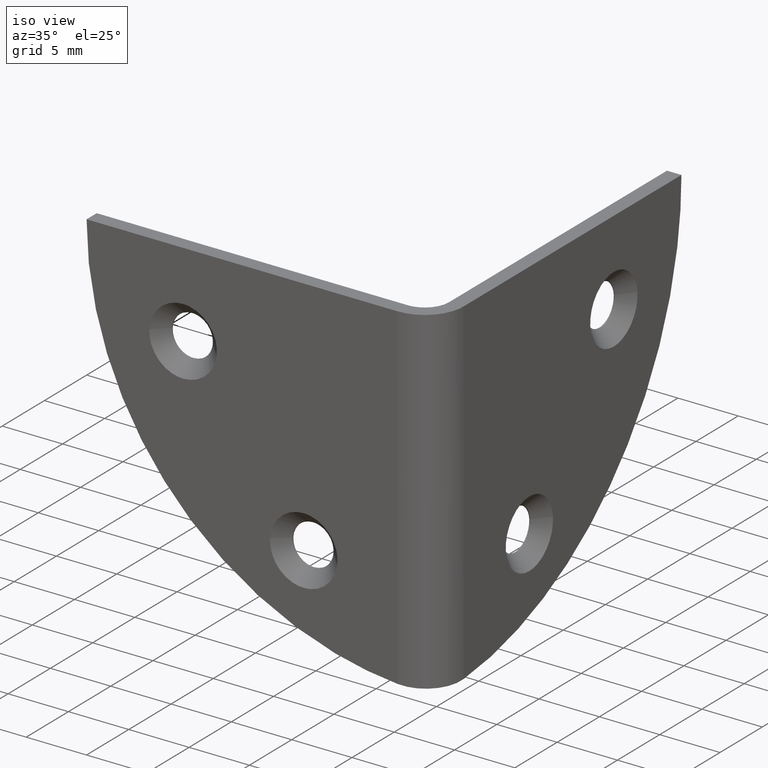
[diagram: clean part render]
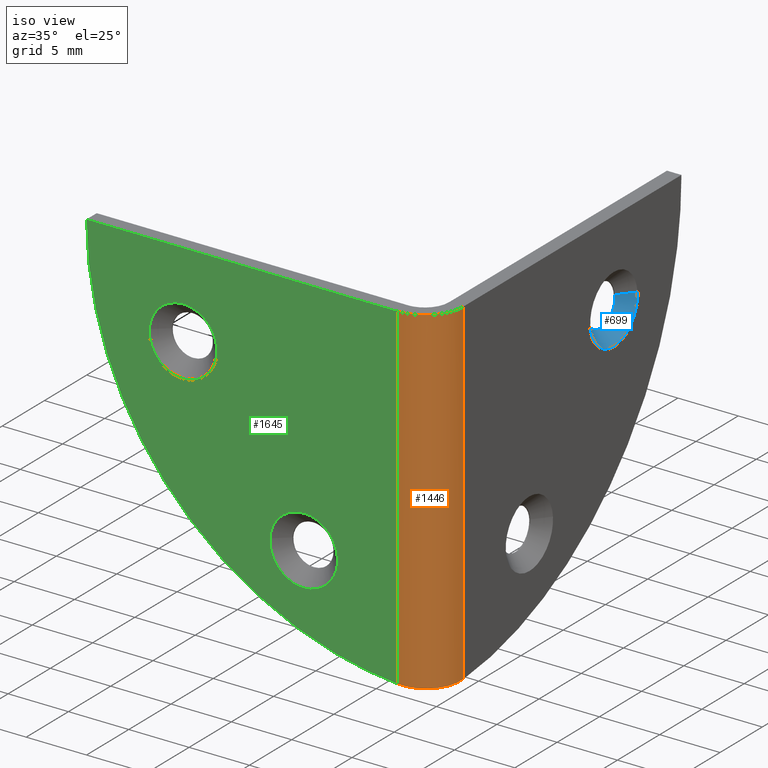
[diagram: same view with three faces highlighted in distinct colors, each labeled with its STEP entity id]
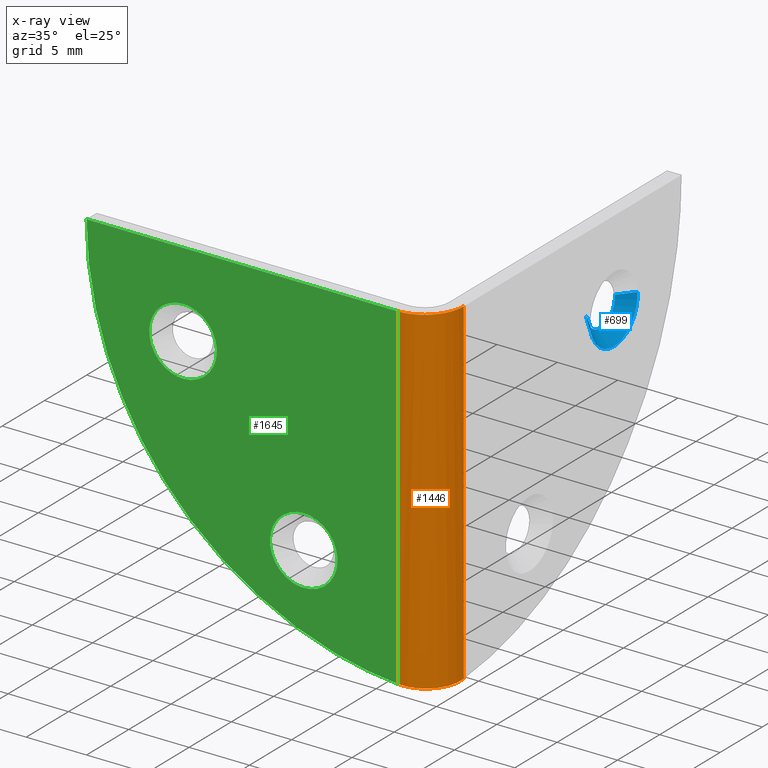
[diagram: x-ray of the same camera — body ghosted, the three highlighted faces saturated]
A machine part, iso view with three faces highlighted in distinct colors.
The next image is the same camera in x-ray (body ghosted, the three faces saturated) — at least one of them is partly hidden behind the body in this view.
Their STEP definitions:

[orange] entity #1446 — the highlighted face is a freeform B-spline surface patch.
#1356=CARTESIAN_POINT('',(-3.283766234585195,0.001096560078218,28.699999999999999));
#1357=CARTESIAN_POINT('',(-3.283766234585195,0.001096560078218,-0.717500000000001));
#1358=CARTESIAN_POINT('',(0.239951695207081,-0.091175241263261,28.700000000000003));
#1359=CARTESIAN_POINT('',(0.239951695207081,-0.091175241263261,-0.717500000000001));
#1360=CARTESIAN_POINT('',(-0.007921687175170,3.425024542646743,28.700000000000006));
#1361=CARTESIAN_POINT('',(-0.007921687175170,3.425024542646743,-0.717500000000001));
#1369=(BOUNDED_SURFACE()B_SPLINE_SURFACE(1,2,((#1356,#1358,#1360),(#1357,#1359,#1361)),.UNSPECIFIED.,.F.,.F.,.U.)B_SPLINE_SURFACE_WITH_KNOTS((2,2),(3,3),(0.0,29.417500000000011),(0.0,5.667655861689293),.UNSPECIFIED.)GEOMETRIC_REPRESENTATION_ITEM()RATIONAL_B_SPLINE_SURFACE(((1.0,0.670944202263631,0.996392689933335),(1.0,0.670944202263631,0.996392689933335)))REPRESENTATION_ITEM('')SURFACE());
#1370=CARTESIAN_POINT('',(-3.200000000000000,0.0,28.0));
#1371=VERTEX_POINT('',#1370);
#1372=CARTESIAN_POINT('',(0.0,3.200000000000000,28.0));
#1373=VERTEX_POINT('',#1372);
#1374=CARTESIAN_POINT('',(-3.200000000000000,0.0,28.0));
#1375=CARTESIAN_POINT('',(-4.336809E-016,4.336809E-016,27.999999999999996));
#1376=CARTESIAN_POINT('',(0.0,3.200000000000000,28.0));
#1384=(BOUNDED_CURVE()B_SPLINE_CURVE(2,(#1374,#1375,#1376),.UNSPECIFIED.,.F.,.U.)CURVE()GEOMETRIC_REPRESENTATION_ITEM()QUASI_UNIFORM_CURVE()RATIONAL_B_SPLINE_CURVE((1.0,0.707106781186548,1.0))REPRESENTATION_ITEM(''));
#1385=EDGE_CURVE('',#1371,#1373,#1384,.T.);
#1386=ORIENTED_EDGE('',*,*,#1385,.F.);
#1387=CARTESIAN_POINT('',(-3.200000000000000,0.0,0.085848375801875));
#1388=VERTEX_POINT('',#1387);
#1389=CARTESIAN_POINT('',(-3.200000000000000,0.0,0.085848375801875));
#1390=CARTESIAN_POINT('',(-3.200000000000000,0.0,28.0));
#1391=QUASI_UNIFORM_CURVE('',1,(#1389,#1390),.UNSPECIFIED.,.F.,.U.);
#1392=EDGE_CURVE('',#1388,#1371,#1391,.T.);
#1393=ORIENTED_EDGE('',*,*,#1392,.F.);
#1394=CARTESIAN_POINT('',(-1.200000000000102,0.702000800640534,0.0));
#1395=VERTEX_POINT('',#1394);
#1396=CARTESIAN_POINT('',(-1.200000000000102,0.702000800640534,0.0));
#1397=CARTESIAN_POINT('',(-1.342045252530052,0.588273580418559,0.001014634819831));
#1398=CARTESIAN_POINT('',(-1.491662187906935,0.488220473917032,0.003163294245683));
#1399=CARTESIAN_POINT('',(-1.805382165407114,0.314309896446755,0.010431471271711));
#1400=CARTESIAN_POINT('',(-1.969603739531771,0.240411131437398,0.015552492130751));
#1401=CARTESIAN_POINT('',(-2.312669322753918,0.120115992782865,0.029545713392779));
#1402=CARTESIAN_POINT('',(-2.486739910458012,0.075370754892745,0.038226276756738));
#1403=CARTESIAN_POINT('',(-2.839705185095241,0.015312335398379,0.059229786025431));
#1404=CARTESIAN_POINT('',(-3.018600100804319,-1.969436E-014,0.071551327061288));
#1405=CARTESIAN_POINT('',(-3.200000000000000,0.0,0.085848375801875));
#1406=B_SPLINE_CURVE_WITH_KNOTS('',3,(#1396,#1397,#1398,#1399,#1400,#1401,#1402,#1403,#1404,#1405),.UNSPECIFIED.,.F.,.U.,(4,2,2,2,4),(0.0,0.250000000000000,0.500000000000000,0.750000000000000,1.0),.UNSPECIFIED.);
#1407=EDGE_CURVE('',#1395,#1388,#1406,.T.);
#1408=ORIENTED_EDGE('',*,*,#1407,.F.);
#1409=CARTESIAN_POINT('',(-0.702000800640706,1.199999999999900,0.0));
#1410=VERTEX_POINT('',#1409);
#1411=CARTESIAN_POINT('',(-0.702000800640706,1.199999999999900,0.0));
#1412=CARTESIAN_POINT('',(-0.923432231500166,0.923432231499975,0.0));
#1413=CARTESIAN_POINT('',(-1.200000000000102,0.702000800640534,0.0));
#1421=(BOUNDED_CURVE()B_SPLINE_CURVE(2,(#1411,#1412,#1413),.UNSPECIFIED.,.F.,.U.)CURVE()GEOMETRIC_REPRESENTATION_ITEM()QUASI_UNIFORM_CURVE()RATIONAL_B_SPLINE_CURVE((1.0,0.993926792387082,1.0))REPRESENTATION_ITEM(''));
#1422=EDGE_CURVE('',#1410,#1395,#1421,.T.);
#1423=ORIENTED_EDGE('',*,*,#1422,.F.);
#1424=CARTESIAN_POINT('',(0.0,3.200000000000000,0.085848375801875));
#1425=VERTEX_POINT('',#1424);
#1426=CARTESIAN_POINT('',(0.0,3.200000000000000,0.085848375801875));
#1427=CARTESIAN_POINT('',(-5.717472E-018,3.018599928091124,0.071551313448883));
#1428=CARTESIAN_POINT('',(-0.015312491975730,2.839674300942001,0.059227387008694));
#1429=CARTESIAN_POINT('',(-0.075400740080093,2.486593665520522,0.038218135832681));
#1430=CARTESIAN_POINT('',(-0.120214509209015,2.312326690938535,0.029529655798103));
#1431=CARTESIAN_POINT('',(-0.240550649565277,1.969267650901181,0.015540869680355));
#1432=CARTESIAN_POINT('',(-0.314377955720203,1.805248992934722,0.010427944851313));
#1433=CARTESIAN_POINT('',(-0.488239699481862,1.491637911133328,0.003163173147343));
#1434=CARTESIAN_POINT('',(-0.588273672126710,1.342045136885849,0.001014928781867));
#1435=CARTESIAN_POINT('',(-0.702000800640706,1.199999999999900,0.0));
#1436=B_SPLINE_CURVE_WITH_KNOTS('',3,(#1426,#1427,#1428,#1429,#1430,#1431,#1432,#1433,#1434,#1435),.UNSPECIFIED.,.F.,.U.,(4,2,2,2,4),(0.0,0.250000000000000,0.500000000000000,0.750000000000000,1.0),.UNSPECIFIED.);
#1437=EDGE_CURVE('',#1425,#1410,#1436,.T.);
#1438=ORIENTED_EDGE('',*,*,#1437,.F.);
#1439=CARTESIAN_POINT('',(0.0,3.200000000000000,28.0));
#1440=CARTESIAN_POINT('',(0.0,3.200000000000000,0.085848375801875));
#1441=QUASI_UNIFORM_CURVE('',1,(#1439,#1440),.UNSPECIFIED.,.F.,.U.);
#1442=EDGE_CURVE('',#1373,#1425,#1441,.T.);
#1443=ORIENTED_EDGE('',*,*,#1442,.F.);
#1444=EDGE_LOOP('',(#1386,#1393,#1408,#1423,#1438,#1443));
#1445=FACE_OUTER_BOUND('',#1444,.T.);
#1446=ADVANCED_FACE('',(#1445),#1369,.T.);

[blue] entity #699 — the highlighted face is a freeform B-spline surface patch.
#390=CARTESIAN_POINT('',(-1.100000000000200,22.688897628839172,20.806028869927928));
#391=VERTEX_POINT('',#390);
#392=CARTESIAN_POINT('',(-1.100000000000200,21.0,19.300000000000001));
#393=VERTEX_POINT('',#392);
#394=CARTESIAN_POINT('',(-1.100000000000200,22.688897628839175,20.806028869927932));
#395=CARTESIAN_POINT('',(-1.100000000000200,22.515929109697829,19.300000000000008));
#396=CARTESIAN_POINT('',(-1.100000000000200,21.0,19.300000000000001));
#404=(BOUNDED_CURVE()B_SPLINE_CURVE(2,(#394,#395,#396),.UNSPECIFIED.,.F.,.U.)B_SPLINE_CURVE_WITH_KNOTS((3,3),(0.269767755879307,0.500000000000000),.UNSPECIFIED.)CURVE()GEOMETRIC_REPRESENTATION_ITEM()RATIONAL_B_SPLINE_CURVE((0.957343736455341,0.730266147779383,1.0))REPRESENTATION_ITEM(''));
#405=EDGE_CURVE('',#391,#393,#404,.T.);
#444=CARTESIAN_POINT('',(-1.100000000000176,19.303170833868968,20.896217626896320));
#445=VERTEX_POINT('',#444);
#451=CARTESIAN_POINT('',(-1.100000000000200,21.0,19.300000000000001));
#452=CARTESIAN_POINT('',(-1.100000000000200,19.400799550192211,19.299999999999997));
#453=CARTESIAN_POINT('',(-1.100000000000200,19.303170833868961,20.896217626896323));
#461=(BOUNDED_CURVE()B_SPLINE_CURVE(2,(#451,#452,#453),.UNSPECIFIED.,.F.,.U.)B_SPLINE_CURVE_WITH_KNOTS((3,3),(0.500000000000000,0.739332976895745),.UNSPECIFIED.)CURVE()GEOMETRIC_REPRESENTATION_ITEM()RATIONAL_B_SPLINE_CURVE((1.0,0.719603976115199,0.976072073079036))REPRESENTATION_ITEM(''));
#462=EDGE_CURVE('',#393,#445,#461,.T.);
#489=CARTESIAN_POINT('',(-1.099999999996063,22.694759467347989,21.133380462768880));
#490=VERTEX_POINT('',#489);
#491=CARTESIAN_POINT('',(-1.099999999996063,22.694759467347989,21.133380462768883));
#492=CARTESIAN_POINT('',(-1.100000000000200,22.700000000000003,21.066793181944405));
#493=CARTESIAN_POINT('',(-1.100000000000200,22.699999999999999,21.0));
#494=CARTESIAN_POINT('',(-1.100000000000200,22.700000000000003,20.902696700443414));
#495=CARTESIAN_POINT('',(-1.100000000000200,22.688897628839172,20.806028869927928));
#503=(BOUNDED_CURVE()B_SPLINE_CURVE(2,(#491,#492,#493,#494,#495),.UNSPECIFIED.,.F.,.U.)B_SPLINE_CURVE_WITH_KNOTS((3,2,3),(0.236331300626451,0.250000000000000,0.269767755879307),.UNSPECIFIED.)CURVE()GEOMETRIC_REPRESENTATION_ITEM()RATIONAL_B_SPLINE_CURVE((0.969723356158634,0.983986122573951,1.0,0.976840633407165,0.957343736455342))REPRESENTATION_ITEM(''));
#504=EDGE_CURVE('',#490,#391,#503,.T.);
#592=CARTESIAN_POINT('',(1.360270E-011,23.791368534458350,21.219685468142909));
#593=VERTEX_POINT('',#592);
#594=CARTESIAN_POINT('',(-1.099999999996063,22.694759467347989,21.133380462768880));
#595=CARTESIAN_POINT('',(1.360270E-011,23.791368534458350,21.219685468142909));
#596=QUASI_UNIFORM_CURVE('',1,(#594,#595),.UNSPECIFIED.,.F.,.U.);
#597=EDGE_CURVE('',#490,#593,#596,.T.);
#614=CARTESIAN_POINT('',(1.360161E-011,18.208631465541650,20.780314531857091));
#615=VERTEX_POINT('',#614);
#631=CARTESIAN_POINT('',(-1.100000000000176,19.303170833868968,20.896217626896320));
#632=CARTESIAN_POINT('',(1.360161E-011,18.208631465541650,20.780314531857091));
#633=QUASI_UNIFORM_CURVE('',1,(#631,#632),.UNSPECIFIED.,.F.,.U.);
#634=EDGE_CURVE('',#445,#615,#633,.T.);
#640=CARTESIAN_POINT('',(-1.127500000000206,19.328552051938647,20.920919708704265));
#641=CARTESIAN_POINT('',(-1.127500000000206,19.330590529530159,20.895018395076399));
#642=CARTESIAN_POINT('',(-1.127500000000205,19.463878596936169,19.201432921726528));
#643=CARTESIAN_POINT('',(-1.127500000000205,21.131222837604820,19.332655759331349));
#644=CARTESIAN_POINT('',(-1.127500000000205,22.798567078273475,19.463878596936169));
#645=CARTESIAN_POINT('',(-1.127500000000205,22.666413372527845,21.143050638784150));
#646=CARTESIAN_POINT('',(-1.127500000000206,22.665487958787040,21.154809135240637));
#647=CARTESIAN_POINT('',(0.028187500000002,18.173591513537744,20.866275700245748));
#648=CARTESIAN_POINT('',(0.028187500000002,18.177038566956785,20.822476733766880));
#649=CARTESIAN_POINT('',(0.028187500000002,18.402427892001253,17.958633824403631));
#650=CARTESIAN_POINT('',(0.028187500000002,21.221897033798811,18.180530858202442));
#651=CARTESIAN_POINT('',(0.028187500000002,24.041366175596373,18.402427892001253));
#652=CARTESIAN_POINT('',(0.028187500000002,23.817895049337192,21.241897774873763));
#653=CARTESIAN_POINT('',(0.028187500000002,23.816330180234601,21.261781322076772));
#661=(BOUNDED_SURFACE()B_SPLINE_SURFACE(2,1,((#640,#647),(#641,#648),(#642,#649),(#643,#650),(#644,#651),(#645,#652),(#646,#653)),.UNSPECIFIED.,.F.,.F.,.U.)B_SPLINE_SURFACE_WITH_KNOTS((3,1,2,1,3),(2,2),(0.0,0.104980082554222,4.790874560290799,9.476769038027376,9.523917141769413),(0.0,1.0),.UNSPECIFIED.)GEOMETRIC_REPRESENTATION_ITEM()RATIONAL_B_SPLINE_SURFACE(((1.013123622154402,1.013123622154402),(1.006561811077201,1.006561811077201),(0.707106781186548,0.707106781186548),(1.0,1.0),(0.707106781186548,0.707106781186548),(1.002947006154656,1.002947006154656),(1.005894012309311,1.005894012309311)))REPRESENTATION_ITEM('')SURFACE());
#662=ORIENTED_EDGE('',*,*,#504,.T.);
#663=ORIENTED_EDGE('',*,*,#405,.T.);
#664=ORIENTED_EDGE('',*,*,#462,.T.);
#665=ORIENTED_EDGE('',*,*,#634,.T.);
#666=CARTESIAN_POINT('',(-3.343175E-015,21.0,18.199999999999800));
#667=VERTEX_POINT('',#666);
#668=CARTESIAN_POINT('',(-3.343175E-015,21.0,18.199999999999800));
#669=CARTESIAN_POINT('',(-3.343175E-015,18.411706623550057,18.199999999999797));
#670=CARTESIAN_POINT('',(1.360161E-011,18.208631465541654,20.780314531857098));
#678=(BOUNDED_CURVE()B_SPLINE_CURVE(2,(#668,#669,#670),.UNSPECIFIED.,.F.,.U.)B_SPLINE_CURVE_WITH_KNOTS((3,3),(0.500000000000000,0.736331300620010),.UNSPECIFIED.)CURVE()GEOMETRIC_REPRESENTATION_ITEM()RATIONAL_B_SPLINE_CURVE((1.0,0.723120658620143,0.969723356145192))REPRESENTATION_ITEM(''));
#679=EDGE_CURVE('',#667,#615,#678,.T.);
#680=ORIENTED_EDGE('',*,*,#679,.F.);
#681=CARTESIAN_POINT('',(1.360270E-011,23.791368534458350,21.219685468142913));
#682=CARTESIAN_POINT('',(-3.343175E-015,23.800000000000196,21.110012299725827));
#683=CARTESIAN_POINT('',(-3.343175E-015,23.800000000000200,21.0));
#684=CARTESIAN_POINT('',(-3.343175E-015,23.800000000000196,18.199999999999797));
#685=CARTESIAN_POINT('',(-3.343175E-015,21.0,18.199999999999800));
#693=(BOUNDED_CURVE()B_SPLINE_CURVE(2,(#681,#682,#683,#684,#685),.UNSPECIFIED.,.F.,.U.)B_SPLINE_CURVE_WITH_KNOTS((3,2,3),(0.236331300620010,0.250000000000000,0.500000000000000),.UNSPECIFIED.)CURVE()GEOMETRIC_REPRESENTATION_ITEM()RATIONAL_B_SPLINE_CURVE((0.969723356145193,0.983986122566405,1.0,0.707106781186547,1.0))REPRESENTATION_ITEM(''));
#694=EDGE_CURVE('',#593,#667,#693,.T.);
#695=ORIENTED_EDGE('',*,*,#694,.F.);
#696=ORIENTED_EDGE('',*,*,#597,.F.);
#697=EDGE_LOOP('',(#662,#663,#664,#665,#680,#695,#696));
#698=FACE_OUTER_BOUND('',#697,.T.);
#699=ADVANCED_FACE('',(#698),#661,.F.);

[green] entity #1645 — the highlighted face is a freeform B-spline surface patch.
#924=CARTESIAN_POINT('',(-8.219573326180626,-1.699119E-011,7.669504142826440));
#925=VERTEX_POINT('',#924);
#931=CARTESIAN_POINT('',(-11.0,0.0,10.800000000000001));
#932=VERTEX_POINT('',#931);
#933=CARTESIAN_POINT('',(-8.219573326180626,-1.699119E-011,7.669504142826440));
#934=CARTESIAN_POINT('',(-8.200000000000001,0.0,7.834172464840621));
#935=CARTESIAN_POINT('',(-8.199999999999999,0.0,8.0));
#936=CARTESIAN_POINT('',(-8.199999999999999,0.0,10.800000000000001));
#937=CARTESIAN_POINT('',(-11.0,0.0,10.800000000000001));
#945=(BOUNDED_CURVE()B_SPLINE_CURVE(2,(#933,#934,#935,#936,#937),.UNSPECIFIED.,.F.,.U.)B_SPLINE_CURVE_WITH_KNOTS((3,2,3),(0.229562473499521,0.250000000000000,0.500000000000000),.UNSPECIFIED.)CURVE()GEOMETRIC_REPRESENTATION_ITEM()RATIONAL_B_SPLINE_CURVE((0.956026754156283,0.976055948314758,1.0,0.707106781186547,1.0))REPRESENTATION_ITEM(''));
#946=EDGE_CURVE('',#925,#932,#945,.T.);
#948=CARTESIAN_POINT('',(-13.794777435582141,-1.695383E-012,8.170935910710409));
#949=VERTEX_POINT('',#948);
#950=CARTESIAN_POINT('',(-11.0,0.0,10.800000000000001));
#951=CARTESIAN_POINT('',(-13.633976987311952,0.0,10.800000000000001));
#952=CARTESIAN_POINT('',(-13.794777435582148,-1.695383E-012,8.170935910710409));
#960=(BOUNDED_CURVE()B_SPLINE_CURVE(2,(#950,#951,#952),.UNSPECIFIED.,.F.,.U.)B_SPLINE_CURVE_WITH_KNOTS((3,3),(0.500000000000000,0.739332962240399),.UNSPECIFIED.)CURVE()GEOMETRIC_REPRESENTATION_ITEM()RATIONAL_B_SPLINE_CURVE((1.0,0.719603993285004,0.976072041669840))REPRESENTATION_ITEM(''));
#961=EDGE_CURVE('',#932,#949,#960,.T.);
#994=CARTESIAN_POINT('',(-11.0,0.0,5.200000000000000));
#995=VERTEX_POINT('',#994);
#996=CARTESIAN_POINT('',(-13.794777435582148,-1.695383E-012,8.170935910710409));
#997=CARTESIAN_POINT('',(-13.799999999999994,0.0,8.085547737248790));
#998=CARTESIAN_POINT('',(-13.800000000000001,0.0,8.0));
#999=CARTESIAN_POINT('',(-13.799999999999999,0.0,5.200000000000000));
#1000=CARTESIAN_POINT('',(-11.0,0.0,5.200000000000000));
#1008=(BOUNDED_CURVE()B_SPLINE_CURVE(2,(#996,#997,#998,#999,#1000),.UNSPECIFIED.,.F.,.U.)B_SPLINE_CURVE_WITH_KNOTS((3,2,3),(0.739332962240399,0.750000000000000,1.0),.UNSPECIFIED.)CURVE()GEOMETRIC_REPRESENTATION_ITEM()RATIONAL_B_SPLINE_CURVE((0.976072041669840,0.987502787901544,1.0,0.707106781186547,1.0))REPRESENTATION_ITEM(''));
#1009=EDGE_CURVE('',#949,#995,#1008,.T.);
#1011=CARTESIAN_POINT('',(-11.0,0.0,5.200000000000000));
#1012=CARTESIAN_POINT('',(-8.513111327575095,0.0,5.199999999999999));
#1013=CARTESIAN_POINT('',(-8.219573326180626,-1.699119E-011,7.669504142826440));
#1021=(BOUNDED_CURVE()B_SPLINE_CURVE(2,(#1011,#1012,#1013),.UNSPECIFIED.,.F.,.U.)B_SPLINE_CURVE_WITH_KNOTS((3,3),(0.0,0.229562473499521),.UNSPECIFIED.)CURVE()GEOMETRIC_REPRESENTATION_ITEM()RATIONAL_B_SPLINE_CURVE((1.0,0.731050832871790,0.956026754156283))REPRESENTATION_ITEM(''));
#1022=EDGE_CURVE('',#995,#925,#1021,.T.);
#1252=CARTESIAN_POINT('',(-18.219573326180630,-1.699061E-011,20.669504142826440));
#1253=VERTEX_POINT('',#1252);
#1259=CARTESIAN_POINT('',(-21.0,0.0,23.800000000000001));
#1260=VERTEX_POINT('',#1259);
#1261=CARTESIAN_POINT('',(-18.219573326180626,-1.699061E-011,20.669504142826440));
#1262=CARTESIAN_POINT('',(-18.199999999999996,0.0,20.834172464840620));
#1263=CARTESIAN_POINT('',(-18.199999999999999,0.0,21.0));
#1264=CARTESIAN_POINT('',(-18.199999999999996,0.0,23.800000000000001));
#1265=CARTESIAN_POINT('',(-21.0,0.0,23.800000000000001));
#1273=(BOUNDED_CURVE()B_SPLINE_CURVE(2,(#1261,#1262,#1263,#1264,#1265),.UNSPECIFIED.,.F.,.U.)B_SPLINE_CURVE_WITH_KNOTS((3,2,3),(0.229562473499521,0.250000000000000,0.500000000000000),.UNSPECIFIED.)CURVE()GEOMETRIC_REPRESENTATION_ITEM()RATIONAL_B_SPLINE_CURVE((0.956026754156284,0.976055948314758,1.0,0.707106781186547,1.0))REPRESENTATION_ITEM(''));
#1274=EDGE_CURVE('',#1253,#1260,#1273,.T.);
#1276=CARTESIAN_POINT('',(-23.794777435582141,-1.696025E-012,21.170935910710408));
#1277=VERTEX_POINT('',#1276);
#1278=CARTESIAN_POINT('',(-21.0,0.0,23.800000000000001));
#1279=CARTESIAN_POINT('',(-23.633976987311954,0.0,23.800000000000008));
#1280=CARTESIAN_POINT('',(-23.794777435582144,-1.696025E-012,21.170935910710416));
#1288=(BOUNDED_CURVE()B_SPLINE_CURVE(2,(#1278,#1279,#1280),.UNSPECIFIED.,.F.,.U.)B_SPLINE_CURVE_WITH_KNOTS((3,3),(0.500000000000000,0.739332962240399),.UNSPECIFIED.)CURVE()GEOMETRIC_REPRESENTATION_ITEM()RATIONAL_B_SPLINE_CURVE((1.0,0.719603993285004,0.976072041669840))REPRESENTATION_ITEM(''));
#1289=EDGE_CURVE('',#1260,#1277,#1288,.T.);
#1322=CARTESIAN_POINT('',(-21.0,0.0,18.199999999999999));
#1323=VERTEX_POINT('',#1322);
#1324=CARTESIAN_POINT('',(-23.794777435582144,-1.696025E-012,21.170935910710416));
#1325=CARTESIAN_POINT('',(-23.799999999999994,0.0,21.085547737248788));
#1326=CARTESIAN_POINT('',(-23.800000000000001,0.0,21.0));
#1327=CARTESIAN_POINT('',(-23.800000000000001,0.0,18.199999999999996));
#1328=CARTESIAN_POINT('',(-21.0,0.0,18.199999999999999));
#1336=(BOUNDED_CURVE()B_SPLINE_CURVE(2,(#1324,#1325,#1326,#1327,#1328),.UNSPECIFIED.,.F.,.U.)B_SPLINE_CURVE_WITH_KNOTS((3,2,3),(0.739332962240399,0.750000000000000,1.0),.UNSPECIFIED.)CURVE()GEOMETRIC_REPRESENTATION_ITEM()RATIONAL_B_SPLINE_CURVE((0.976072041669840,0.987502787901544,1.0,0.707106781186547,1.0))REPRESENTATION_ITEM(''));
#1337=EDGE_CURVE('',#1277,#1323,#1336,.T.);
#1339=CARTESIAN_POINT('',(-21.0,0.0,18.199999999999999));
#1340=CARTESIAN_POINT('',(-18.513111327575089,0.0,18.200000000000003));
#1341=CARTESIAN_POINT('',(-18.219573326180626,-1.699061E-011,20.669504142826440));
#1349=(BOUNDED_CURVE()B_SPLINE_CURVE(2,(#1339,#1340,#1341),.UNSPECIFIED.,.F.,.U.)B_SPLINE_CURVE_WITH_KNOTS((3,3),(0.0,0.229562473499521),.UNSPECIFIED.)CURVE()GEOMETRIC_REPRESENTATION_ITEM()RATIONAL_B_SPLINE_CURVE((1.0,0.731050832871790,0.956026754156284))REPRESENTATION_ITEM(''));
#1350=EDGE_CURVE('',#1323,#1253,#1349,.T.);
#1370=CARTESIAN_POINT('',(-3.200000000000000,0.0,28.0));
#1371=VERTEX_POINT('',#1370);
#1387=CARTESIAN_POINT('',(-3.200000000000000,0.0,0.085848375801875));
#1388=VERTEX_POINT('',#1387);
#1389=CARTESIAN_POINT('',(-3.200000000000000,0.0,0.085848375801875));
#1390=CARTESIAN_POINT('',(-3.200000000000000,0.0,28.0));
#1391=QUASI_UNIFORM_CURVE('',1,(#1389,#1390),.UNSPECIFIED.,.F.,.U.);
#1392=EDGE_CURVE('',#1388,#1371,#1391,.T.);
#1605=CARTESIAN_POINT('',(-30.288709940423828,0.0,29.394311786807751));
#1606=CARTESIAN_POINT('',(-1.911289358450798,0.0,29.394311786807751));
#1607=CARTESIAN_POINT('',(-30.288709940423828,0.0,-1.308464190883171));
#1608=CARTESIAN_POINT('',(-1.911289358450798,0.0,-1.308464190883171));
#1609=B_SPLINE_SURFACE_WITH_KNOTS('',1,1,((#1605,#1607),(#1606,#1608)),.UNSPECIFIED.,.F.,.F.,.U.,(2,2),(2,2),(0.0,28.377420581973031),(0.0,30.702775977690919),.UNSPECIFIED.);
#1610=CARTESIAN_POINT('',(-28.999999990884550,0.0,28.000000467982549));
#1611=VERTEX_POINT('',#1610);
#1612=CARTESIAN_POINT('',(-28.999999990884561,0.0,28.000000467982542));
#1613=CARTESIAN_POINT('',(-29.000660380551306,0.0,2.119329654653967));
#1614=CARTESIAN_POINT('',(-3.199999999999998,0.0,0.085848375801865));
#1622=(BOUNDED_CURVE()B_SPLINE_CURVE(2,(#1612,#1613,#1614),.UNSPECIFIED.,.F.,.U.)CURVE()GEOMETRIC_REPRESENTATION_ITEM()QUASI_UNIFORM_CURVE()RATIONAL_B_SPLINE_CURVE((1.0,0.734352092227377,1.0))REPRESENTATION_ITEM(''));
#1623=EDGE_CURVE('',#1611,#1388,#1622,.T.);
#1624=ORIENTED_EDGE('',*,*,#1623,.T.);
#1625=ORIENTED_EDGE('',*,*,#1392,.T.);
#1626=CARTESIAN_POINT('',(-28.999999990884550,0.0,28.000000467982549));
#1627=CARTESIAN_POINT('',(-3.200000000000000,0.0,28.0));
#1628=QUASI_UNIFORM_CURVE('',1,(#1626,#1627),.UNSPECIFIED.,.F.,.U.);
#1629=EDGE_CURVE('',#1611,#1371,#1628,.T.);
#1630=ORIENTED_EDGE('',*,*,#1629,.F.);
#1631=EDGE_LOOP('',(#1624,#1625,#1630));
#1632=FACE_OUTER_BOUND('',#1631,.T.);
#1633=ORIENTED_EDGE('',*,*,#1289,.F.);
#1634=ORIENTED_EDGE('',*,*,#1274,.F.);
#1635=ORIENTED_EDGE('',*,*,#1350,.F.);
#1636=ORIENTED_EDGE('',*,*,#1337,.F.);
#1637=EDGE_LOOP('',(#1633,#1634,#1635,#1636));
#1638=FACE_BOUND('',#1637,.T.);
#1639=ORIENTED_EDGE('',*,*,#961,.F.);
#1640=ORIENTED_EDGE('',*,*,#946,.F.);
#1641=ORIENTED_EDGE('',*,*,#1022,.F.);
#1642=ORIENTED_EDGE('',*,*,#1009,.F.);
#1643=EDGE_LOOP('',(#1639,#1640,#1641,#1642));
#1644=FACE_BOUND('',#1643,.T.);
#1645=ADVANCED_FACE('',(#1632,#1638,#1644),#1609,.F.);